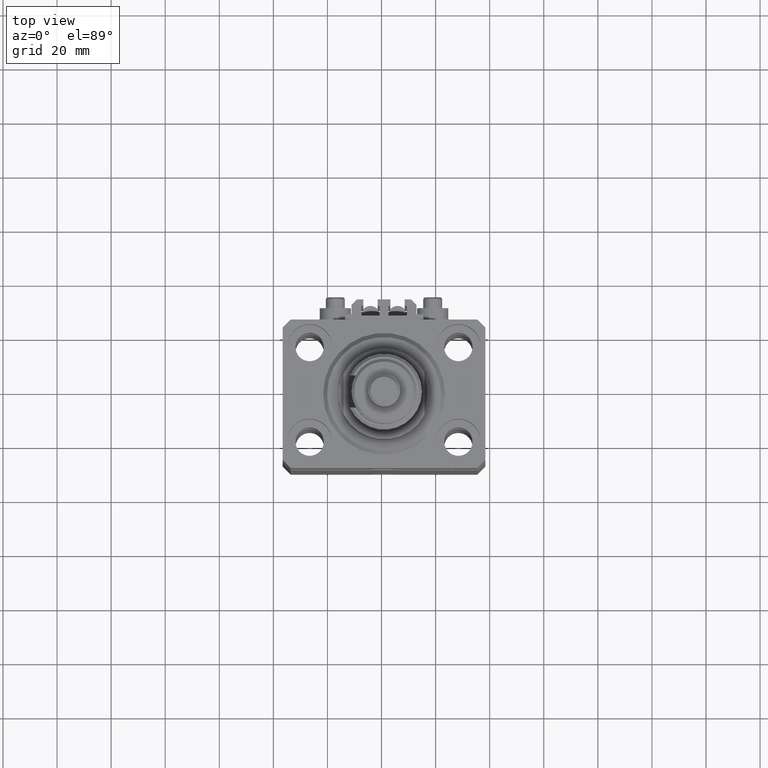
[diagram: clean part render]
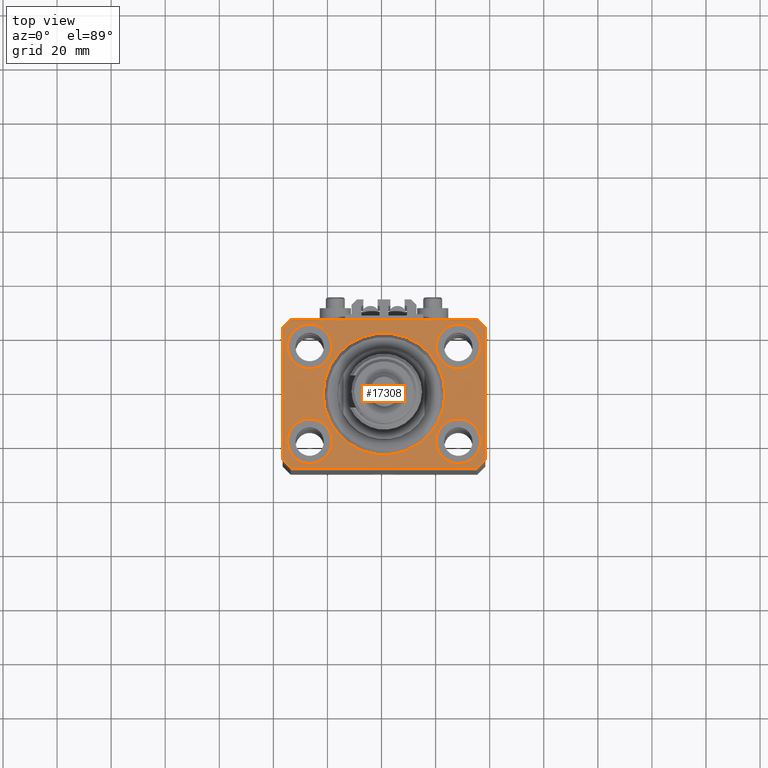
[diagram: same view with one face highlighted and labeled with its STEP entity id]
A machine part, top view. The second image highlights one B-rep face of the part: STEP entity #17308.
In plain terms, the highlighted planar face has unit normal (0, 0, 1).
Its self-contained STEP definition (entity closure, byte-faithful):
#769 = ORIENTED_EDGE ( 'NONE', *, *, #12992, .T. ) ;
#1412 = AXIS2_PLACEMENT_3D ( 'NONE', #19472, #15377, #12070 ) ;
#1539 = DIRECTION ( 'NONE',  ( 0.000000000000000000, 0.000000000000000000, 1.000000000000000000 ) ) ;
#1567 = EDGE_CURVE ( 'NONE', #44849, #47671, #19027, .T. ) ;
#1730 = CARTESIAN_POINT ( 'NONE',  ( -34.49999999999999289, 27.50000000000000000, 0.000000000000000000 ) ) ;
#2051 = DIRECTION ( 'NONE',  ( 0.000000000000000000, -1.000000000000000000, 0.000000000000000000 ) ) ;
#2229 = EDGE_LOOP ( 'NONE', ( #49332, #28815 ) ) ;
#2268 = FACE_OUTER_BOUND ( 'NONE', #2781, .T. ) ;
#2767 = DIRECTION ( 'NONE',  ( 1.000000000000000000, 0.000000000000000000, -0.000000000000000000 ) ) ;
#2781 = EDGE_LOOP ( 'NONE', ( #5274, #23612, #12122, #48503, #24154, #769, #13282, #33228 ) ) ;
#2993 = DIRECTION ( 'NONE',  ( 1.076236605503979380E-14, 1.000000000000000000, 0.000000000000000000 ) ) ;
#3299 = CARTESIAN_POINT ( 'NONE',  ( 19.25000000000000000, 17.50000000000001066, 0.000000000000000000 ) ) ;
#3346 = CIRCLE ( 'NONE', #44084, 8.249999999999992895 ) ;
#3394 = VERTEX_POINT ( 'NONE', #25062 ) ;
#4209 = EDGE_LOOP ( 'NONE', ( #40427, #19709 ) ) ;
#4258 = CARTESIAN_POINT ( 'NONE',  ( 34.50000000000056843, 27.50000000000000000, 0.000000000000000000 ) ) ;
#4276 = DIRECTION ( 'NONE',  ( 1.000000000000000000, 0.000000000000000000, 0.000000000000000000 ) ) ;
#4378 = VERTEX_POINT ( 'NONE', #46217 ) ;
#4684 = DIRECTION ( 'NONE',  ( 0.000000000000000000, 0.000000000000000000, 1.000000000000000000 ) ) ;
#5160 = CARTESIAN_POINT ( 'NONE',  ( 35.75000000000000711, -17.50000000000000000, 0.000000000000000000 ) ) ;
#5274 = ORIENTED_EDGE ( 'NONE', *, *, #37637, .T. ) ;
#5471 = CARTESIAN_POINT ( 'NONE',  ( -34.49999999999998579, -27.49999999999999645, 0.000000000000000000 ) ) ;
#5690 = VERTEX_POINT ( 'NONE', #23006 ) ;
#6417 = EDGE_CURVE ( 'NONE', #29090, #38774, #42860, .T. ) ;
#6582 = EDGE_CURVE ( 'NONE', #3394, #5690, #29833, .T. ) ;
#7040 = AXIS2_PLACEMENT_3D ( 'NONE', #38633, #18745, #49878 ) ;
#7291 = AXIS2_PLACEMENT_3D ( 'NONE', #31810, #15501, #4276 ) ;
#7448 = EDGE_CURVE ( 'NONE', #47895, #37746, #8350, .T. ) ;
#7838 = DIRECTION ( 'NONE',  ( -1.000000000000000000, 0.000000000000000000, 0.000000000000000000 ) ) ;
#7926 = DIRECTION ( 'NONE',  ( 0.7071067811865474617, 0.7071067811865474617, 0.000000000000000000 ) ) ;
#8176 = CARTESIAN_POINT ( 'NONE',  ( 34.49999999999999289, -27.49999999999999645, 0.000000000000000000 ) ) ;
#8350 = LINE ( 'NONE', #23918, #13570 ) ;
#8747 = CIRCLE ( 'NONE', #1412, 22.50000000000000355 ) ;
#8941 = DIRECTION ( 'NONE',  ( 0.000000000000000000, 0.000000000000000000, 1.000000000000000000 ) ) ;
#9089 = CARTESIAN_POINT ( 'NONE',  ( -27.50000000000000355, 17.50000000000000000, 0.000000000000000000 ) ) ;
#9120 = EDGE_CURVE ( 'NONE', #47843, #15121, #40893, .T. ) ;
#9724 = LINE ( 'NONE', #25279, #15673 ) ;
#10199 = FACE_BOUND ( 'NONE', #45374, .T. ) ;
#10797 = CARTESIAN_POINT ( 'NONE',  ( -35.75000000000000711, 17.50000000000000000, 0.000000000000000000 ) ) ;
#11788 = EDGE_CURVE ( 'NONE', #47671, #44849, #3346, .T. ) ;
#11867 = EDGE_LOOP ( 'NONE', ( #18294, #16419 ) ) ;
#12070 = DIRECTION ( 'NONE',  ( 1.000000000000000000, 0.000000000000000000, 0.000000000000000000 ) ) ;
#12122 = ORIENTED_EDGE ( 'NONE', *, *, #47610, .T. ) ;
#12600 = CARTESIAN_POINT ( 'NONE',  ( 19.25000000000000000, -17.50000000000000000, 0.000000000000000000 ) ) ;
#12992 = EDGE_CURVE ( 'NONE', #4378, #24263, #19155, .T. ) ;
#13209 = EDGE_CURVE ( 'NONE', #17105, #38014, #25235, .T. ) ;
#13282 = ORIENTED_EDGE ( 'NONE', *, *, #41110, .T. ) ;
#13516 = AXIS2_PLACEMENT_3D ( 'NONE', #36255, #1539, #32922 ) ;
#13570 = VECTOR ( 'NONE', #39480, 1000.000000000000000 ) ;
#13763 = FACE_BOUND ( 'NONE', #44519, .T. ) ;
#14120 = DIRECTION ( 'NONE',  ( 1.000000000000000000, 0.000000000000000000, 0.000000000000000000 ) ) ;
#14934 = AXIS2_PLACEMENT_3D ( 'NONE', #46860, #24143, #16226 ) ;
#15121 = VERTEX_POINT ( 'NONE', #39646 ) ;
#15377 = DIRECTION ( 'NONE',  ( 0.000000000000000000, 0.000000000000000000, 1.000000000000000000 ) ) ;
#15501 = DIRECTION ( 'NONE',  ( 0.000000000000000000, 0.000000000000000000, 1.000000000000000000 ) ) ;
#15673 = VECTOR ( 'NONE', #2051, 1000.000000000000000 ) ;
#15777 = CIRCLE ( 'NONE', #27180, 8.250000000000000000 ) ;
#15840 = ORIENTED_EDGE ( 'NONE', *, *, #1567, .F. ) ;
#16226 = DIRECTION ( 'NONE',  ( 1.000000000000000000, 0.000000000000000000, 0.000000000000000000 ) ) ;
#16419 = ORIENTED_EDGE ( 'NONE', *, *, #46264, .F. ) ;
#16760 = CARTESIAN_POINT ( 'NONE',  ( -37.49999999999999289, 24.50000000000000000, 0.000000000000000000 ) ) ;
#17105 = VERTEX_POINT ( 'NONE', #24659 ) ;
#17308 = ADVANCED_FACE ( 'NONE', ( #42070, #17851, #13763, #10199, #18595, #2268 ), #37240, .T. ) ;
#17689 = DIRECTION ( 'NONE',  ( -0.7071067811865356934, 0.7071067811865594521, 0.000000000000000000 ) ) ;
#17851 = FACE_BOUND ( 'NONE', #11867, .T. ) ;
#18294 = ORIENTED_EDGE ( 'NONE', *, *, #38724, .F. ) ;
#18407 = CARTESIAN_POINT ( 'NONE',  ( -19.25000000000000355, 17.50000000000000000, 0.000000000000000000 ) ) ;
#18595 = FACE_BOUND ( 'NONE', #4209, .T. ) ;
#18745 = DIRECTION ( 'NONE',  ( 0.000000000000000000, 0.000000000000000000, 1.000000000000000000 ) ) ;
#18883 = VECTOR ( 'NONE', #7926, 1000.000000000000114 ) ;
#19027 = CIRCLE ( 'NONE', #14934, 8.249999999999992895 ) ;
#19155 = LINE ( 'NONE', #8176, #18883 ) ;
#19472 = CARTESIAN_POINT ( 'NONE',  ( 0.000000000000000000, 0.000000000000000000, 0.000000000000000000 ) ) ;
#19709 = ORIENTED_EDGE ( 'NONE', *, *, #45689, .F. ) ;
#20166 = VECTOR ( 'NONE', #17689, 1000.000000000000114 ) ;
#23006 = CARTESIAN_POINT ( 'NONE',  ( -19.25000000000000355, -17.50000000000000000, 0.000000000000000000 ) ) ;
#23098 = VECTOR ( 'NONE', #32506, 1000.000000000000000 ) ;
#23612 = ORIENTED_EDGE ( 'NONE', *, *, #7448, .T. ) ;
#23918 = CARTESIAN_POINT ( 'NONE',  ( -34.49999999999999289, 27.50000000000000000, 0.000000000000000000 ) ) ;
#24143 = DIRECTION ( 'NONE',  ( 0.000000000000000000, 0.000000000000000000, 1.000000000000000000 ) ) ;
#24154 = ORIENTED_EDGE ( 'NONE', *, *, #50430, .T. ) ;
#24263 = VERTEX_POINT ( 'NONE', #28578 ) ;
#24587 = ORIENTED_EDGE ( 'NONE', *, *, #25080, .F. ) ;
#24659 = CARTESIAN_POINT ( 'NONE',  ( -37.49999999999999289, -24.50000000000000000, 0.000000000000000000 ) ) ;
#25062 = CARTESIAN_POINT ( 'NONE',  ( -35.75000000000000711, -17.50000000000000000, 0.000000000000000000 ) ) ;
#25080 = EDGE_CURVE ( 'NONE', #38774, #29090, #41250, .T. ) ;
#25235 = LINE ( 'NONE', #32881, #44963 ) ;
#25279 = CARTESIAN_POINT ( 'NONE',  ( -37.49999999999999289, 24.50000000000000000, 0.000000000000000000 ) ) ;
#25930 = DIRECTION ( 'NONE',  ( 1.000000000000000000, 0.000000000000000000, 0.000000000000000000 ) ) ;
#26349 = CARTESIAN_POINT ( 'NONE',  ( 27.49999999999999645, 17.50000000000001066, 0.000000000000000000 ) ) ;
#26409 = AXIS2_PLACEMENT_3D ( 'NONE', #29316, #38220, #2767 ) ;
#26671 = DIRECTION ( 'NONE',  ( 0.000000000000000000, 0.000000000000000000, 1.000000000000000000 ) ) ;
#26855 = CIRCLE ( 'NONE', #7291, 8.250000000000000000 ) ;
#27180 = AXIS2_PLACEMENT_3D ( 'NONE', #30491, #26671, #25930 ) ;
#28224 = DIRECTION ( 'NONE',  ( 1.000000000000000000, 0.000000000000000000, 0.000000000000000000 ) ) ;
#28578 = CARTESIAN_POINT ( 'NONE',  ( 37.49999999999999289, -24.50000000000000000, 0.000000000000000000 ) ) ;
#28815 = ORIENTED_EDGE ( 'NONE', *, *, #6582, .F. ) ;
#28949 = EDGE_CURVE ( 'NONE', #48816, #48774, #8747, .T. ) ;
#29090 = VERTEX_POINT ( 'NONE', #18407 ) ;
#29316 = CARTESIAN_POINT ( 'NONE',  ( 0.000000000000000000, 0.000000000000000000, 0.000000000000000000 ) ) ;
#29833 = CIRCLE ( 'NONE', #7040, 8.250000000000000000 ) ;
#29989 = ORIENTED_EDGE ( 'NONE', *, *, #6417, .F. ) ;
#30491 = CARTESIAN_POINT ( 'NONE',  ( -27.50000000000000355, -17.50000000000000000, 0.000000000000000000 ) ) ;
#31810 = CARTESIAN_POINT ( 'NONE',  ( 27.50000000000000355, -17.50000000000000000, 0.000000000000000000 ) ) ;
#32506 = DIRECTION ( 'NONE',  ( 1.000000000000000000, 0.000000000000000000, 0.000000000000000000 ) ) ;
#32881 = CARTESIAN_POINT ( 'NONE',  ( -37.49999999999999289, -24.50000000000000000, 0.000000000000000000 ) ) ;
#32922 = DIRECTION ( 'NONE',  ( 1.000000000000000000, 0.000000000000000000, 0.000000000000000000 ) ) ;
#33228 = ORIENTED_EDGE ( 'NONE', *, *, #9120, .T. ) ;
#34420 = CARTESIAN_POINT ( 'NONE',  ( 22.50000000000000355, 0.000000000000000000, 0.000000000000000000 ) ) ;
#35491 = CARTESIAN_POINT ( 'NONE',  ( 0.000000000000000000, 0.000000000000000000, 0.000000000000000000 ) ) ;
#35894 = VERTEX_POINT ( 'NONE', #12600 ) ;
#36255 = CARTESIAN_POINT ( 'NONE',  ( -27.50000000000000355, 17.50000000000000000, 0.000000000000000000 ) ) ;
#36554 = DIRECTION ( 'NONE',  ( 1.000000000000000000, 0.000000000000000000, 0.000000000000000000 ) ) ;
#37240 = PLANE ( 'NONE',  #26409 ) ;
#37637 = EDGE_CURVE ( 'NONE', #15121, #47895, #42802, .T. ) ;
#37746 = VERTEX_POINT ( 'NONE', #16760 ) ;
#38014 = VERTEX_POINT ( 'NONE', #45257 ) ;
#38220 = DIRECTION ( 'NONE',  ( 0.000000000000000000, 0.000000000000000000, 1.000000000000000000 ) ) ;
#38633 = CARTESIAN_POINT ( 'NONE',  ( -27.50000000000000355, -17.50000000000000000, 0.000000000000000000 ) ) ;
#38724 = EDGE_CURVE ( 'NONE', #44663, #35894, #26855, .T. ) ;
#38774 = VERTEX_POINT ( 'NONE', #10797 ) ;
#39138 = ORIENTED_EDGE ( 'NONE', *, *, #11788, .F. ) ;
#39284 = AXIS2_PLACEMENT_3D ( 'NONE', #39389, #4684, #36554 ) ;
#39389 = CARTESIAN_POINT ( 'NONE',  ( 27.50000000000000355, -17.50000000000000000, 0.000000000000000000 ) ) ;
#39480 = DIRECTION ( 'NONE',  ( -0.7071067811865471286, -0.7071067811865479058, 0.000000000000000000 ) ) ;
#39560 = CARTESIAN_POINT ( 'NONE',  ( 35.74999999999999289, 17.50000000000001066, 0.000000000000000000 ) ) ;
#39646 = CARTESIAN_POINT ( 'NONE',  ( 34.50000000000056843, 27.50000000000000000, 0.000000000000000000 ) ) ;
#39966 = DIRECTION ( 'NONE',  ( 0.000000000000000000, 0.000000000000000000, 1.000000000000000000 ) ) ;
#40028 = CARTESIAN_POINT ( 'NONE',  ( 37.50000000000051870, 24.49999999999995381, 0.000000000000000000 ) ) ;
#40427 = ORIENTED_EDGE ( 'NONE', *, *, #28949, .F. ) ;
#40872 = CIRCLE ( 'NONE', #39284, 8.250000000000000000 ) ;
#40893 = LINE ( 'NONE', #44229, #20166 ) ;
#41110 = EDGE_CURVE ( 'NONE', #24263, #47843, #50459, .T. ) ;
#41175 = DIRECTION ( 'NONE',  ( 0.000000000000000000, 0.000000000000000000, 1.000000000000000000 ) ) ;
#41250 = CIRCLE ( 'NONE', #13516, 8.250000000000000000 ) ;
#42070 = FACE_BOUND ( 'NONE', #2229, .T. ) ;
#42487 = AXIS2_PLACEMENT_3D ( 'NONE', #35491, #8941, #46985 ) ;
#42802 = LINE ( 'NONE', #4258, #44761 ) ;
#42860 = CIRCLE ( 'NONE', #49378, 8.250000000000000000 ) ;
#44084 = AXIS2_PLACEMENT_3D ( 'NONE', #26349, #41175, #14120 ) ;
#44229 = CARTESIAN_POINT ( 'NONE',  ( 37.50000000000051870, 24.49999999999995381, 0.000000000000000000 ) ) ;
#44519 = EDGE_LOOP ( 'NONE', ( #15840, #39138 ) ) ;
#44637 = DIRECTION ( 'NONE',  ( 0.7071067811865483499, -0.7071067811865466846, 0.000000000000000000 ) ) ;
#44663 = VERTEX_POINT ( 'NONE', #5160 ) ;
#44761 = VECTOR ( 'NONE', #7838, 1000.000000000000000 ) ;
#44849 = VERTEX_POINT ( 'NONE', #39560 ) ;
#44963 = VECTOR ( 'NONE', #44637, 1000.000000000000000 ) ;
#45257 = CARTESIAN_POINT ( 'NONE',  ( -34.49999999999998579, -27.49999999999999645, 0.000000000000000000 ) ) ;
#45374 = EDGE_LOOP ( 'NONE', ( #29989, #24587 ) ) ;
#45689 = EDGE_CURVE ( 'NONE', #48774, #48816, #48215, .T. ) ;
#46217 = CARTESIAN_POINT ( 'NONE',  ( 34.49999999999999289, -27.49999999999999645, 0.000000000000000000 ) ) ;
#46264 = EDGE_CURVE ( 'NONE', #35894, #44663, #40872, .T. ) ;
#46860 = CARTESIAN_POINT ( 'NONE',  ( 27.49999999999999645, 17.50000000000001066, 0.000000000000000000 ) ) ;
#46985 = DIRECTION ( 'NONE',  ( 1.000000000000000000, 0.000000000000000000, 0.000000000000000000 ) ) ;
#47610 = EDGE_CURVE ( 'NONE', #37746, #17105, #9724, .T. ) ;
#47671 = VERTEX_POINT ( 'NONE', #3299 ) ;
#47841 = LINE ( 'NONE', #5471, #23098 ) ;
#47843 = VERTEX_POINT ( 'NONE', #40028 ) ;
#47895 = VERTEX_POINT ( 'NONE', #1730 ) ;
#48215 = CIRCLE ( 'NONE', #42487, 22.50000000000000355 ) ;
#48503 = ORIENTED_EDGE ( 'NONE', *, *, #13209, .T. ) ;
#48774 = VERTEX_POINT ( 'NONE', #49519 ) ;
#48816 = VERTEX_POINT ( 'NONE', #34420 ) ;
#48977 = VECTOR ( 'NONE', #2993, 1000.000000000000000 ) ;
#49332 = ORIENTED_EDGE ( 'NONE', *, *, #50215, .F. ) ;
#49378 = AXIS2_PLACEMENT_3D ( 'NONE', #9089, #39966, #28224 ) ;
#49519 = CARTESIAN_POINT ( 'NONE',  ( -22.50000000000000355, 2.755455298081544383E-15, 0.000000000000000000 ) ) ;
#49878 = DIRECTION ( 'NONE',  ( 1.000000000000000000, 0.000000000000000000, 0.000000000000000000 ) ) ;
#50207 = CARTESIAN_POINT ( 'NONE',  ( 37.49999999999999289, -24.50000000000000000, 0.000000000000000000 ) ) ;
#50215 = EDGE_CURVE ( 'NONE', #5690, #3394, #15777, .T. ) ;
#50430 = EDGE_CURVE ( 'NONE', #38014, #4378, #47841, .T. ) ;
#50459 = LINE ( 'NONE', #50207, #48977 ) ;